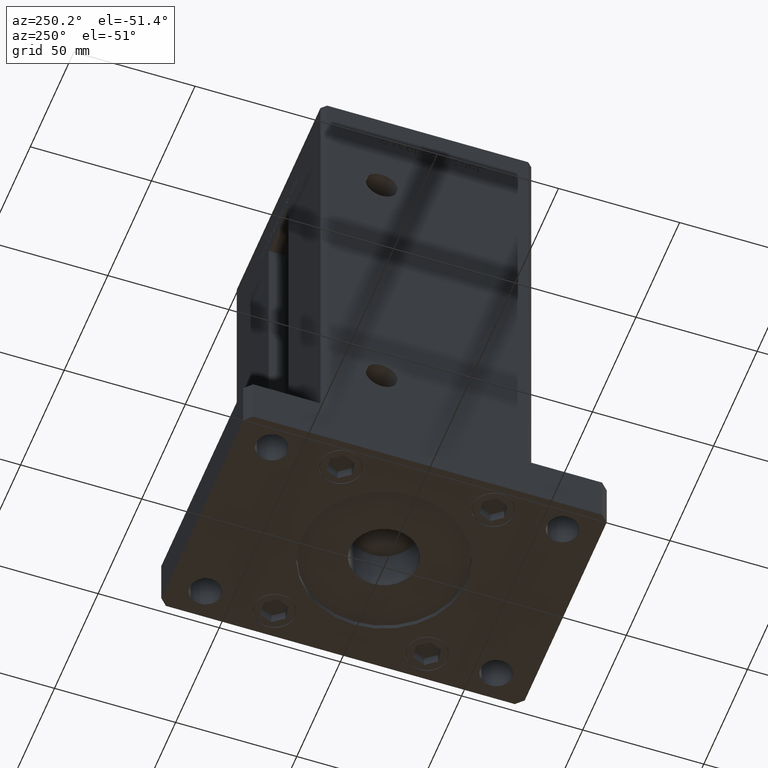
[diagram: clean part render]
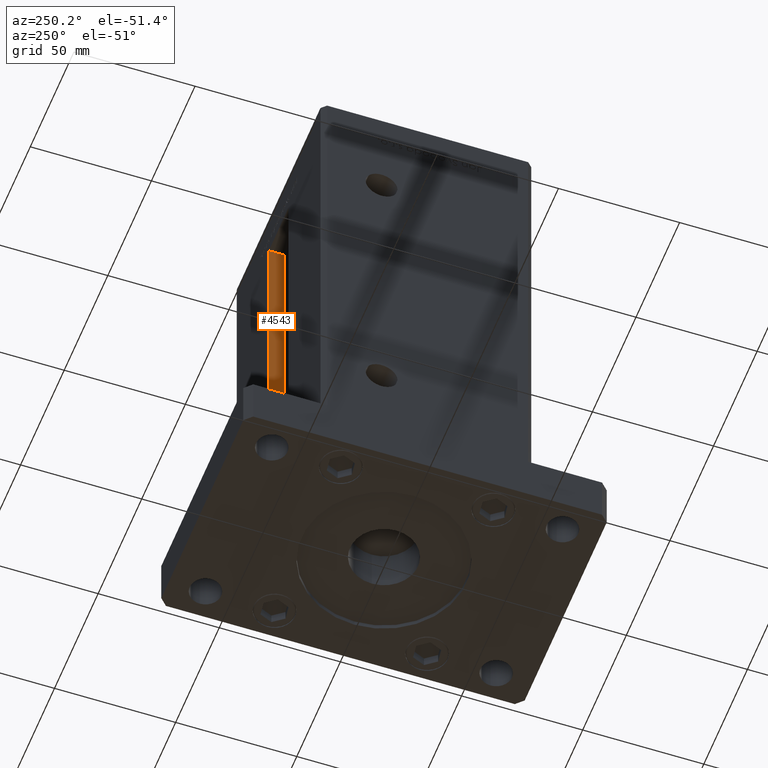
[diagram: same view with one face highlighted and labeled with its STEP entity id]
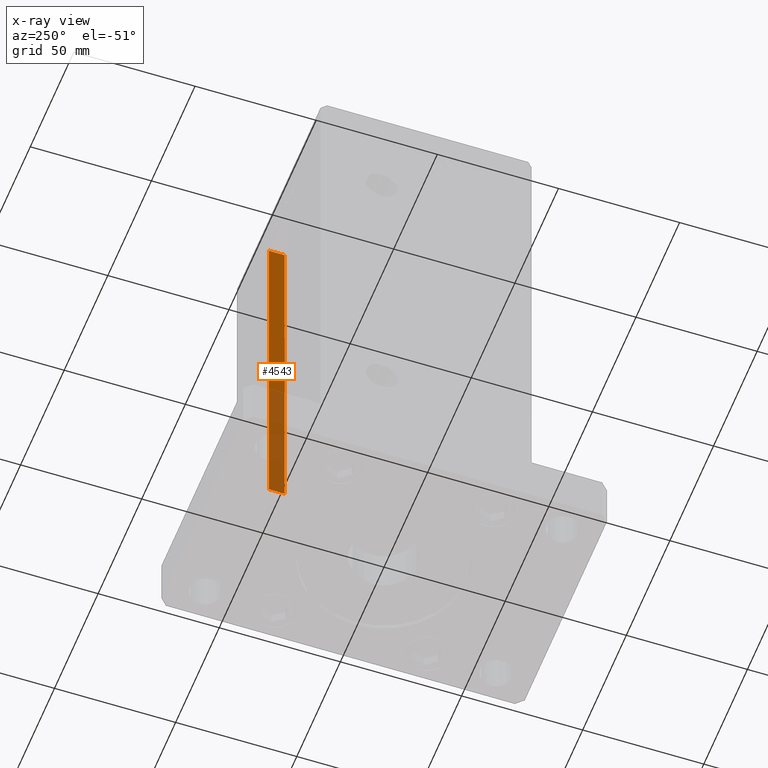
[diagram: x-ray of the same camera — body ghosted, the highlighted face saturated]
A machine part, auxiliary view. The second image highlights one B-rep face of the part: STEP entity #4543.
The next image is the same camera in x-ray: the body ghosted, the highlighted face saturated — about 42% of this face is hidden behind the body in this view.
In plain terms, the highlighted planar face has unit normal (1, 0, 0).
Its self-contained STEP definition (entity closure, byte-faithful):
#1497 = EDGE_CURVE ( 'NONE', #22669, #4046, #13622, .T. ) ;
#2424 = EDGE_CURVE ( 'NONE', #11280, #46256, #28970, .T. ) ;
#4046 = VERTEX_POINT ( 'NONE', #50222 ) ;
#4543 = ADVANCED_FACE ( 'NONE', ( #27852 ), #19459, .F. ) ;
#5743 = DIRECTION ( 'NONE',  ( 0.000000000000000000, 1.000000000000000000, 0.000000000000000000 ) ) ;
#9767 = CARTESIAN_POINT ( 'NONE',  ( 11.24999999999999822, 36.99999999999999289, 0.000000000000000000 ) ) ;
#11280 = VERTEX_POINT ( 'NONE', #24259 ) ;
#13622 = LINE ( 'NONE', #30980, #26119 ) ;
#15795 = AXIS2_PLACEMENT_3D ( 'NONE', #22975, #31111, #26766 ) ;
#16302 = LINE ( 'NONE', #41010, #48353 ) ;
#19459 = PLANE ( 'NONE',  #15795 ) ;
#21045 = LINE ( 'NONE', #29710, #25918 ) ;
#22641 = VECTOR ( 'NONE', #37908, 1000.000000000000000 ) ;
#22669 = VERTEX_POINT ( 'NONE', #9767 ) ;
#22975 = CARTESIAN_POINT ( 'NONE',  ( 11.24999999999999822, 36.99999999999999289, 0.000000000000000000 ) ) ;
#24259 = CARTESIAN_POINT ( 'NONE',  ( 11.24999999999999822, 43.50000000000000000, 0.000000000000000000 ) ) ;
#24455 = EDGE_LOOP ( 'NONE', ( #49334, #28151, #40404, #43116 ) ) ;
#25918 = VECTOR ( 'NONE', #5743, 1000.000000000000000 ) ;
#26119 = VECTOR ( 'NONE', #34780, 1000.000000000000000 ) ;
#26766 = DIRECTION ( 'NONE',  ( 0.000000000000000000, 0.000000000000000000, -1.000000000000000000 ) ) ;
#27852 = FACE_OUTER_BOUND ( 'NONE', #24455, .T. ) ;
#28151 = ORIENTED_EDGE ( 'NONE', *, *, #37459, .F. ) ;
#28785 = DIRECTION ( 'NONE',  ( -0.000000000000000000, -1.000000000000000000, 0.000000000000000000 ) ) ;
#28970 = LINE ( 'NONE', #45543, #22641 ) ;
#29710 = CARTESIAN_POINT ( 'NONE',  ( 11.24999999999999822, 36.99999999999999289, 0.000000000000000000 ) ) ;
#30257 = EDGE_CURVE ( 'NONE', #46256, #4046, #16302, .T. ) ;
#30980 = CARTESIAN_POINT ( 'NONE',  ( 11.24999999999999822, 36.99999999999999289, 0.000000000000000000 ) ) ;
#31111 = DIRECTION ( 'NONE',  ( 1.000000000000000000, -0.000000000000000000, 0.000000000000000000 ) ) ;
#34780 = DIRECTION ( 'NONE',  ( -0.000000000000000000, -0.000000000000000000, 1.000000000000000000 ) ) ;
#35105 = CARTESIAN_POINT ( 'NONE',  ( 11.24999999999999112, 43.50000000000000000, 148.5000000000000000 ) ) ;
#37459 = EDGE_CURVE ( 'NONE', #22669, #11280, #21045, .T. ) ;
#37908 = DIRECTION ( 'NONE',  ( -0.000000000000000000, -0.000000000000000000, 1.000000000000000000 ) ) ;
#40404 = ORIENTED_EDGE ( 'NONE', *, *, #1497, .T. ) ;
#41010 = CARTESIAN_POINT ( 'NONE',  ( 11.24999999999999822, 0.000000000000000000, 148.5000000000000000 ) ) ;
#43116 = ORIENTED_EDGE ( 'NONE', *, *, #30257, .F. ) ;
#45543 = CARTESIAN_POINT ( 'NONE',  ( 11.24999999999999822, 43.50000000000000000, 0.000000000000000000 ) ) ;
#46256 = VERTEX_POINT ( 'NONE', #35105 ) ;
#48353 = VECTOR ( 'NONE', #28785, 1000.000000000000000 ) ;
#49334 = ORIENTED_EDGE ( 'NONE', *, *, #2424, .F. ) ;
#50222 = CARTESIAN_POINT ( 'NONE',  ( 11.24999999999999822, 36.99999999999999289, 148.5000000000000000 ) ) ;